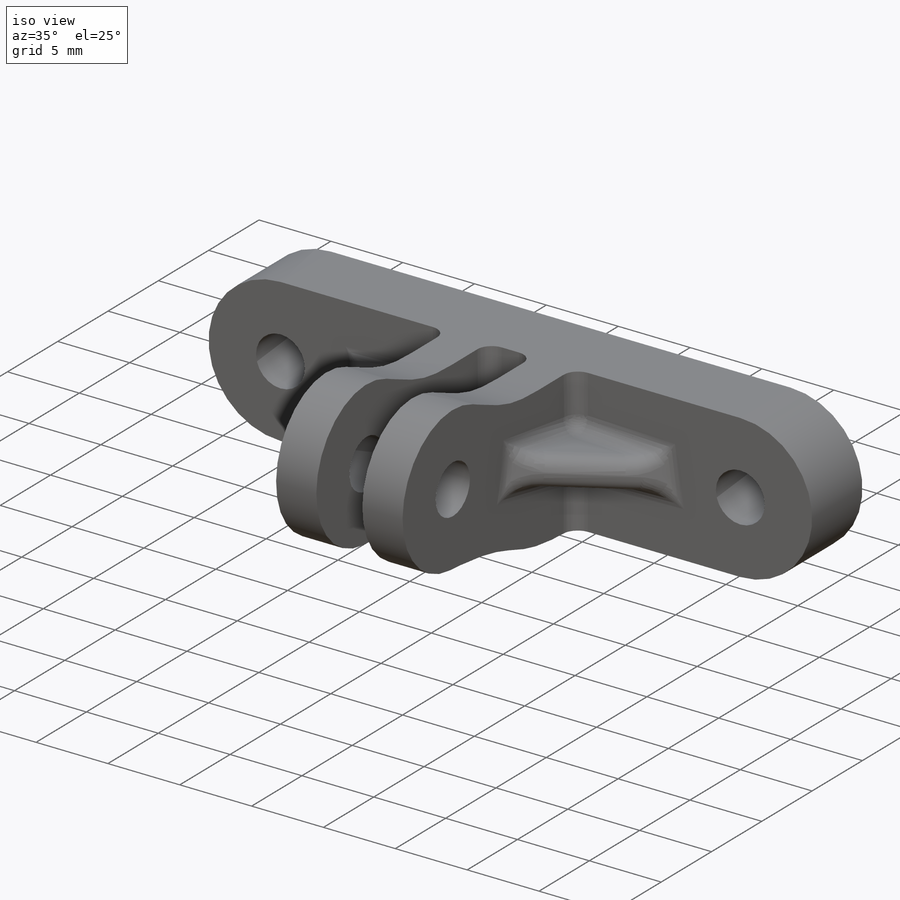
[diagram: iso view]
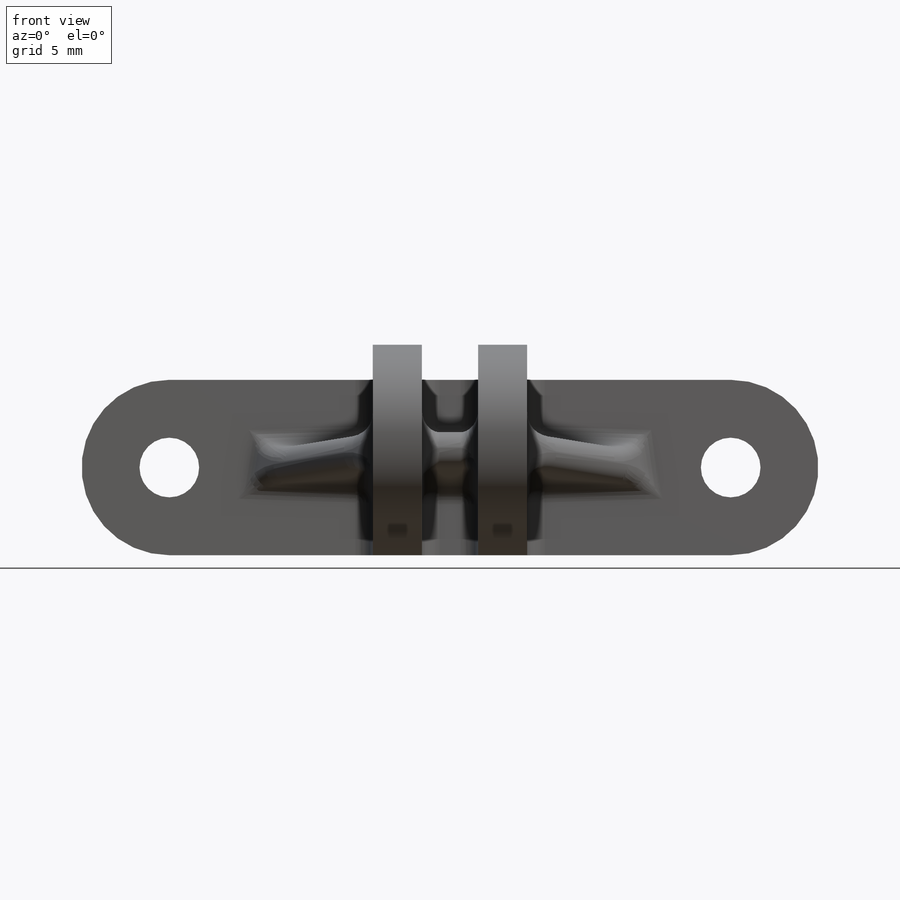
[diagram: front view]
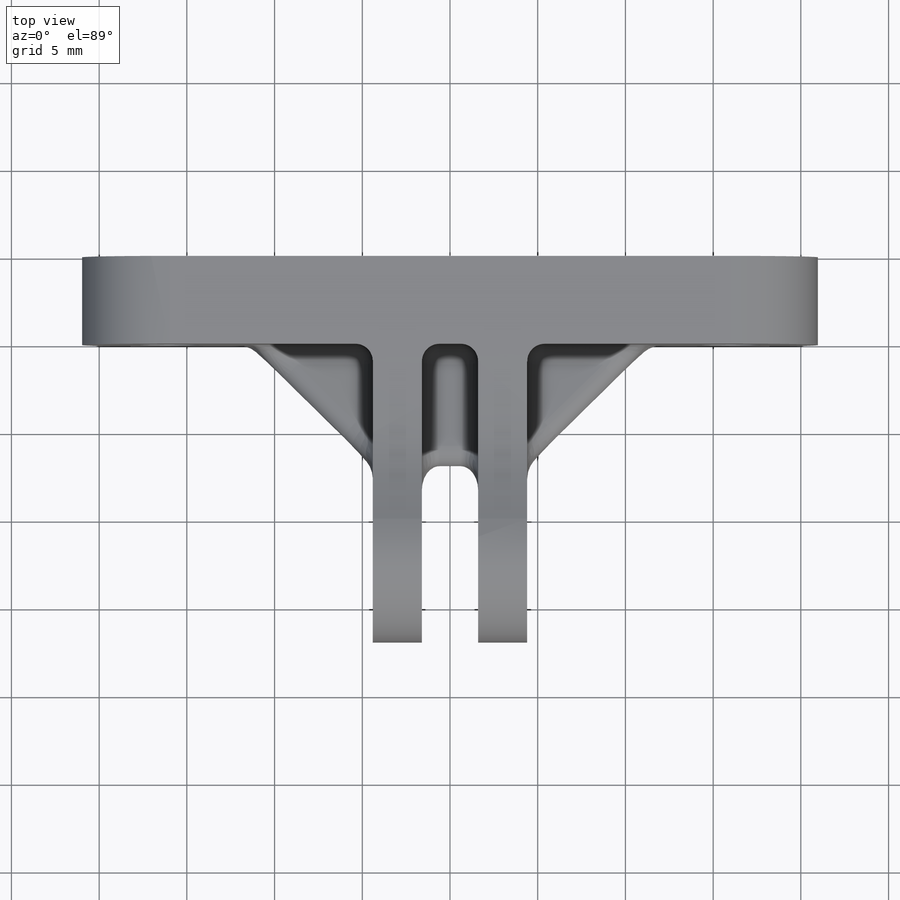
[diagram: top view]
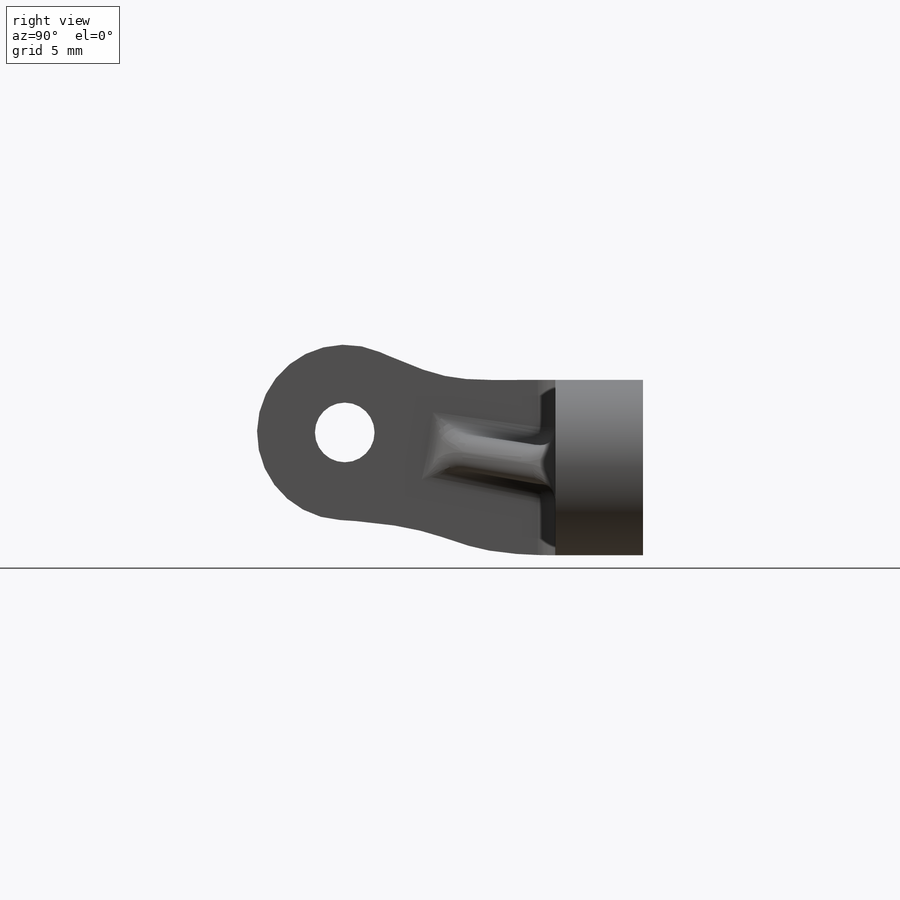
[diagram: right view]
SOLIDWORKS PART (.sldprt)
format: sldprt  version: not decoded by parser v0  size: 404,992 bytes
history: native  units: mm
features: sketch x6, extrude x3, fillet x2, material x1, plane x1 (+12 scaffold rows collapsed)
feature tree (25):
  scaffold x12  (default folders/planes/origin — collapsed)
  material  "Material <not specified>"
  sketch  "Sketch1"  dims[D3=3.4mm D4=3.4mm D1=10.0mm D2=32.0mm]
  extrude  "Boss-Extrude1"  Depth=5mm
  sketch  "Sketch2"  dims[c1.D1=3.4mm c1.D4=10.0mm c1.D5=10.0mm c2.D1=~9.687247mm c2.D2=11.0mm c2.D3=17.0mm c3.D2=2.0mm c3.D5=~6.901279mm c3.D4=~8.036063mm c4.D4=135.0deg c4.D6=~13.071068mm c5.D4=5.0mm]
  extrude  "Boss-Extrude2"  Depth=2.8mm
  extrude  "Boss-Extrude3"  [1 undecoded]
  sketch  "Sketch2<3>"  dims[D1=2.8mm D19=1.6mm]
  plane  "Plane1"
  sketch  "Sketch3"  dims[c1.D1=7.0mm c1.D2=7.0mm c1.D3=7.0mm c2.D1=2.0mm c2.D3=2.0deg]
  sketch  "Sketch3<3>"  dims[D1=2.0mm D3=2.0deg]
  sketch  "Sketch3<4>"  dims[D1=2.0mm D3=2.0deg]
  fillet  "Fillet2"  Radius=1mm
  fillet  "Fillet3"  Radius=1mm
decode coverage: 10 of 11 modeling features carry decoded parameters
note: ~ marks probable driven/reference dimensions
note: 1 parameter value undecoded
note: suppression state not decoded; provenance and decode notes live in map.json
